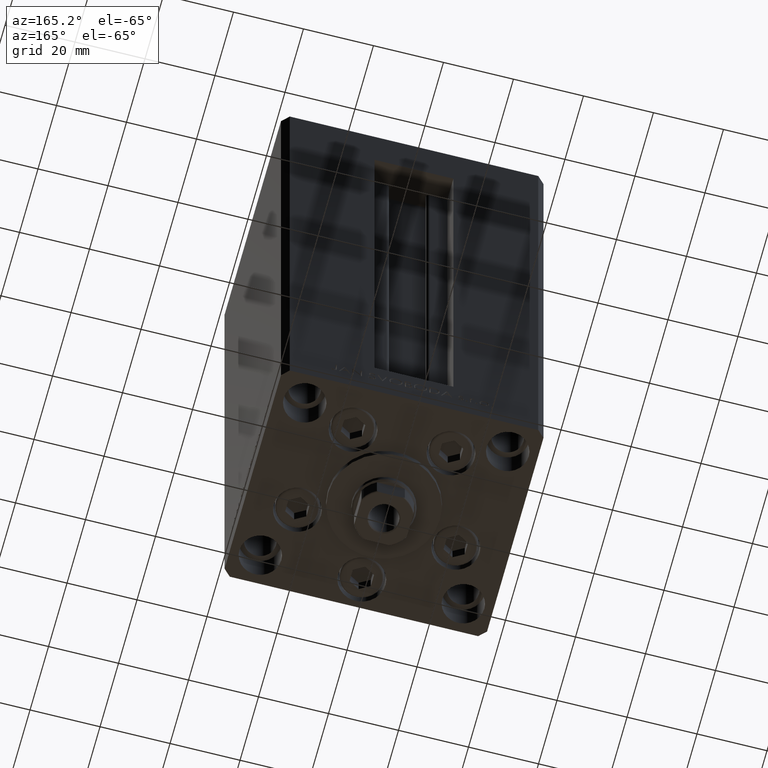
[diagram: clean part render]
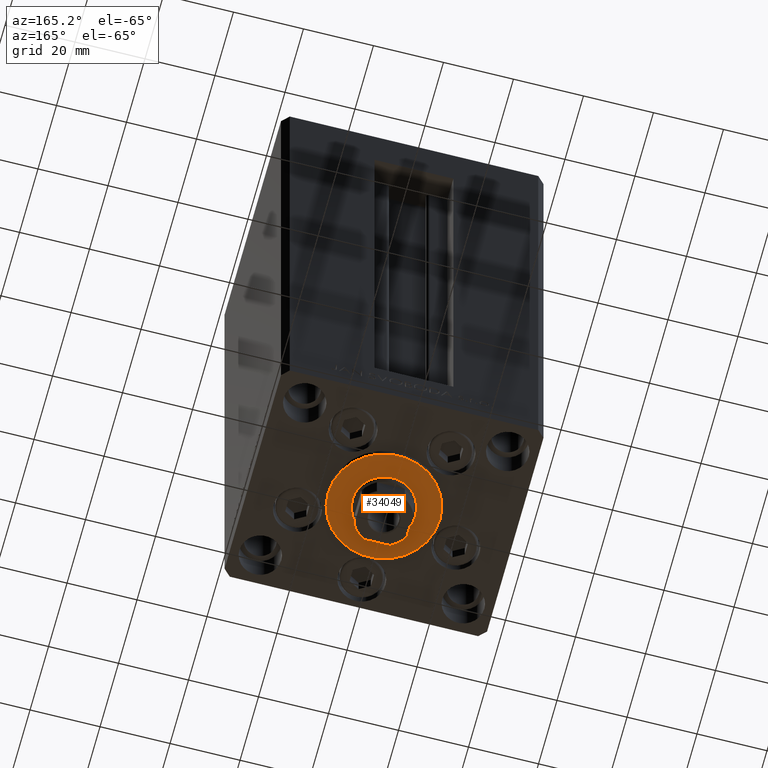
[diagram: same view with one face highlighted and labeled with its STEP entity id]
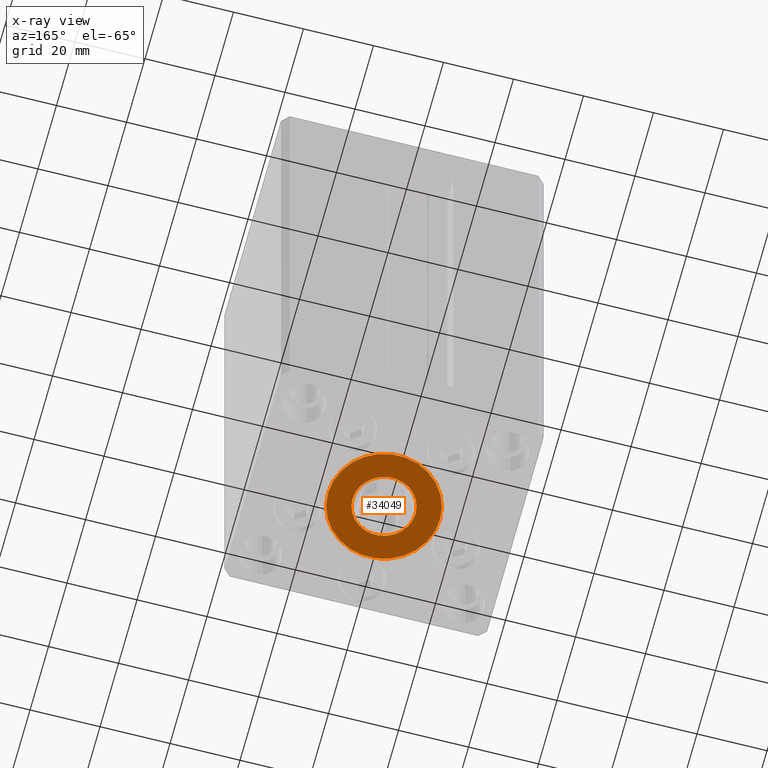
[diagram: x-ray of the same camera — body ghosted, the highlighted face saturated]
A machine part, auxiliary view. The second image highlights one B-rep face of the part: STEP entity #34049.
The next image is the same camera in x-ray: the body ghosted, the highlighted face saturated — about 0% of this face is hidden behind the body in this view.
In plain terms, the highlighted planar face has unit normal (0, 0, -1).
Its self-contained STEP definition (entity closure, byte-faithful):
#2540 = ORIENTED_EDGE ( 'NONE', *, *, #21499, .F. ) ;
#5677 = DIRECTION ( 'NONE',  ( 0.000000000000000000, 0.000000000000000000, 1.000000000000000000 ) ) ;
#5806 = DIRECTION ( 'NONE',  ( 0.000000000000000000, 0.000000000000000000, 1.000000000000000000 ) ) ;
#6361 = CIRCLE ( 'NONE', #43540, 9.000000000000000000 ) ;
#6776 = CARTESIAN_POINT ( 'NONE',  ( 0.000000000000000000, -6.938893903907228378E-15, 2.000000000000000000 ) ) ;
#7961 = EDGE_CURVE ( 'NONE', #32344, #44859, #47706, .T. ) ;
#8090 = ORIENTED_EDGE ( 'NONE', *, *, #34716, .T. ) ;
#8887 = VERTEX_POINT ( 'NONE', #24644 ) ;
#9382 = DIRECTION ( 'NONE',  ( 1.000000000000000000, 0.000000000000000000, 0.000000000000000000 ) ) ;
#12742 = VERTEX_POINT ( 'NONE', #29857 ) ;
#13705 = FACE_BOUND ( 'NONE', #17875, .T. ) ;
#14623 = DIRECTION ( 'NONE',  ( 0.000000000000000000, 0.000000000000000000, 1.000000000000000000 ) ) ;
#15339 = AXIS2_PLACEMENT_3D ( 'NONE', #32862, #5677, #9382 ) ;
#15404 = CARTESIAN_POINT ( 'NONE',  ( 0.000000000000000000, -6.938893903907228378E-15, 2.000000000000000000 ) ) ;
#17875 = EDGE_LOOP ( 'NONE', ( #26073, #2540 ) ) ;
#18222 = CIRCLE ( 'NONE', #41125, 16.00000000000000355 ) ;
#20976 = AXIS2_PLACEMENT_3D ( 'NONE', #6776, #40399, #40169 ) ;
#21278 = EDGE_CURVE ( 'NONE', #12742, #8887, #18222, .T. ) ;
#21499 = EDGE_CURVE ( 'NONE', #44859, #32344, #6361, .T. ) ;
#21661 = CIRCLE ( 'NONE', #15339, 16.00000000000000355 ) ;
#24644 = CARTESIAN_POINT ( 'NONE',  ( 16.00000000000000355, -4.979459025271462852E-15, 2.000000000000000000 ) ) ;
#26073 = ORIENTED_EDGE ( 'NONE', *, *, #7961, .F. ) ;
#26354 = AXIS2_PLACEMENT_3D ( 'NONE', #42594, #14623, #36641 ) ;
#28545 = CARTESIAN_POINT ( 'NONE',  ( 0.000000000000000000, -6.938893903907228378E-15, 2.000000000000000000 ) ) ;
#29032 = FACE_OUTER_BOUND ( 'NONE', #29583, .T. ) ;
#29583 = EDGE_LOOP ( 'NONE', ( #47248, #8090 ) ) ;
#29857 = CARTESIAN_POINT ( 'NONE',  ( -16.00000000000000355, -6.938893903907228378E-15, 2.000000000000000000 ) ) ;
#30238 = DIRECTION ( 'NONE',  ( 1.000000000000000000, 0.000000000000000000, 0.000000000000000000 ) ) ;
#30270 = CARTESIAN_POINT ( 'NONE',  ( 9.000000000000000000, -6.938893903907228378E-15, 2.000000000000000000 ) ) ;
#32344 = VERTEX_POINT ( 'NONE', #30270 ) ;
#32862 = CARTESIAN_POINT ( 'NONE',  ( 0.000000000000000000, -6.938893903907228378E-15, 2.000000000000000000 ) ) ;
#34049 = ADVANCED_FACE ( 'NONE', ( #13705, #29032 ), #44358, .T. ) ;
#34716 = EDGE_CURVE ( 'NONE', #8887, #12742, #21661, .T. ) ;
#36641 = DIRECTION ( 'NONE',  ( 1.000000000000000000, 0.000000000000000000, 0.000000000000000000 ) ) ;
#40169 = DIRECTION ( 'NONE',  ( 1.000000000000000000, 0.000000000000000000, -0.000000000000000000 ) ) ;
#40176 = DIRECTION ( 'NONE',  ( 1.000000000000000000, 0.000000000000000000, 0.000000000000000000 ) ) ;
#40399 = DIRECTION ( 'NONE',  ( 0.000000000000000000, 0.000000000000000000, 1.000000000000000000 ) ) ;
#41125 = AXIS2_PLACEMENT_3D ( 'NONE', #28545, #5806, #40176 ) ;
#41618 = DIRECTION ( 'NONE',  ( 0.000000000000000000, 0.000000000000000000, 1.000000000000000000 ) ) ;
#42594 = CARTESIAN_POINT ( 'NONE',  ( 0.000000000000000000, -6.938893903907228378E-15, 2.000000000000000000 ) ) ;
#43540 = AXIS2_PLACEMENT_3D ( 'NONE', #15404, #41618, #30238 ) ;
#44358 = PLANE ( 'NONE',  #20976 ) ;
#44859 = VERTEX_POINT ( 'NONE', #47276 ) ;
#47248 = ORIENTED_EDGE ( 'NONE', *, *, #21278, .T. ) ;
#47276 = CARTESIAN_POINT ( 'NONE',  ( -9.000000000000000000, -5.836711784674610467E-15, 2.000000000000000000 ) ) ;
#47706 = CIRCLE ( 'NONE', #26354, 9.000000000000000000 ) ;